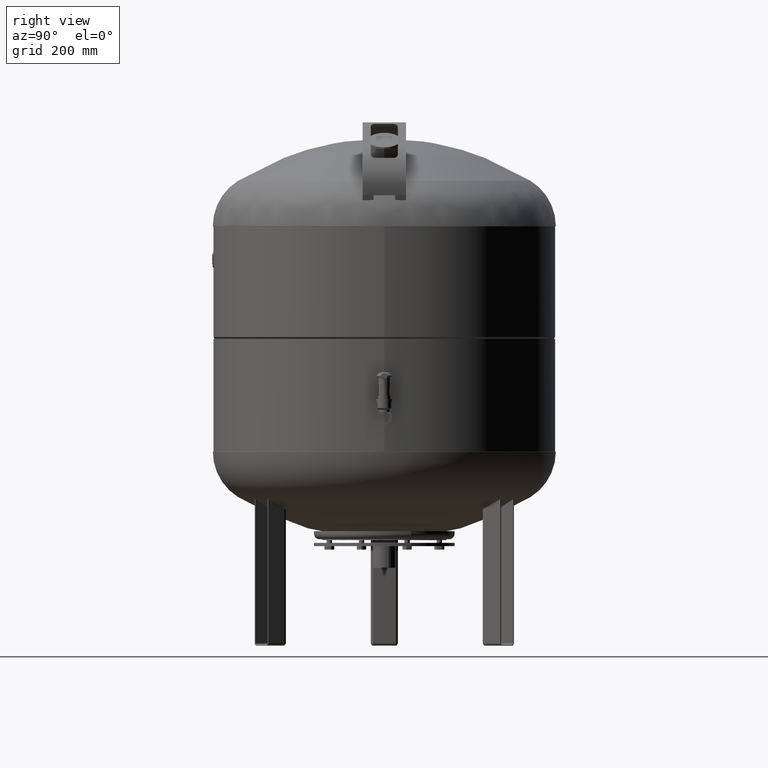
[diagram: clean part render]
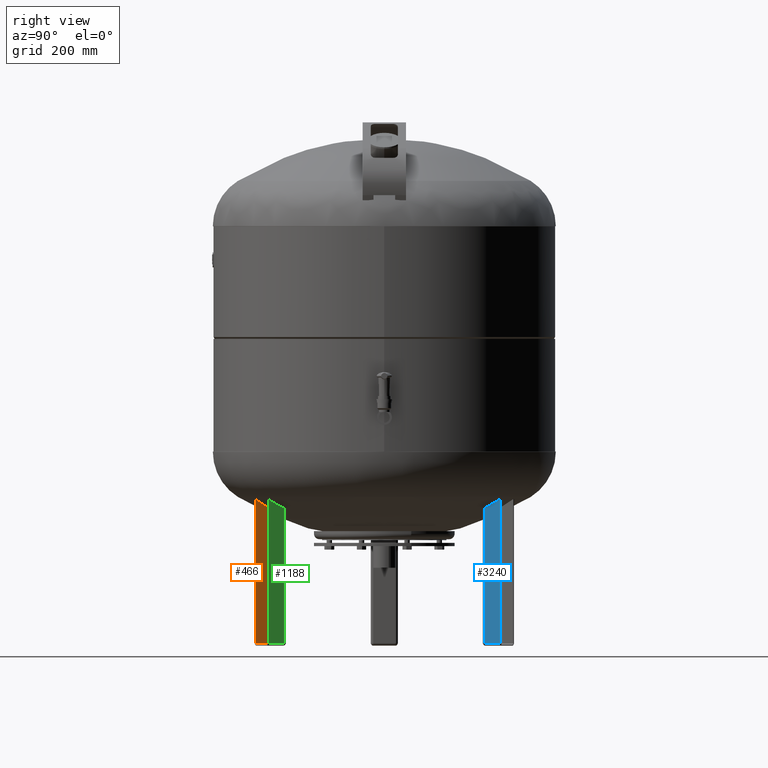
[diagram: same view with three faces highlighted in distinct colors, each labeled with its STEP entity id]
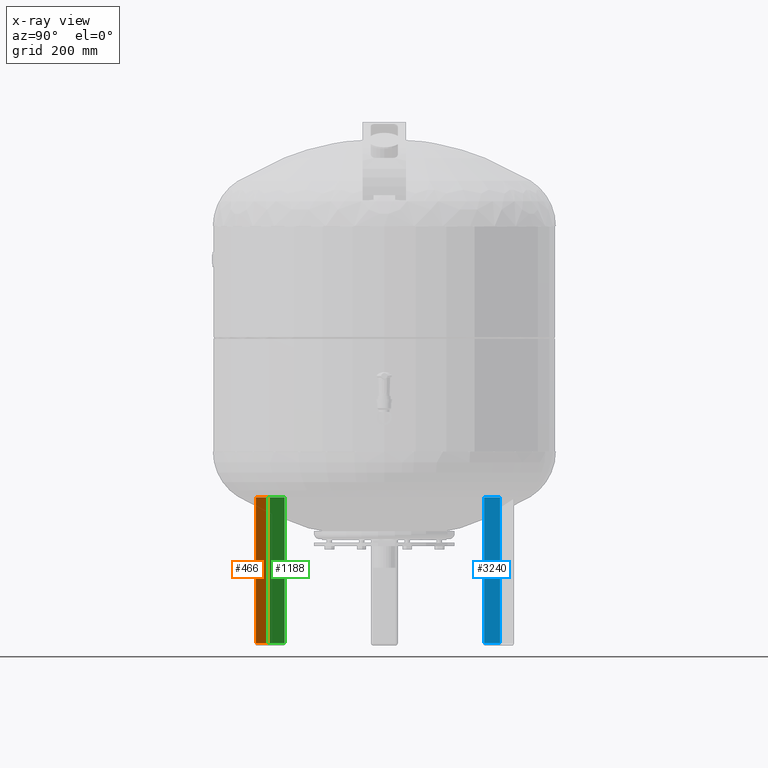
[diagram: x-ray of the same camera — body ghosted, the three highlighted faces saturated]
A machine part, right view with three faces highlighted in distinct colors.
The next image is the same camera in x-ray (body ghosted, the three faces saturated) — at least one of them is partly hidden behind the body in this view.
Their STEP definitions:

[orange] entity #466 — the highlighted planar face has unit normal (-0.866, -0.5, -0).
#182=CARTESIAN_POINT('',(111.264428414850070,-237.715643089630760,274.0));
#183=VERTEX_POINT('',#182);
#191=CARTESIAN_POINT('',(94.264428414850073,-208.270779360959840,274.0));
#192=VERTEX_POINT('',#191);
#193=CARTESIAN_POINT('',(94.264428414850073,-208.270779360959840,274.0));
#194=DIRECTION('',(0.500000000000000,-0.866025403784439,0.0));
#195=VECTOR('',#194,34.000000000000007);
#196=LINE('',#193,#195);
#197=EDGE_CURVE('',#192,#183,#196,.T.);
#382=CARTESIAN_POINT('',(111.264428414850070,-237.715643089630760,4.499999999999996));
#383=VERTEX_POINT('',#382);
#433=CARTESIAN_POINT('',(111.264428414850070,-237.715643089630760,4.499999999999996));
#434=DIRECTION('',(0.0,0.0,1.0));
#435=VECTOR('',#434,269.500000000000000);
#436=LINE('',#433,#435);
#437=EDGE_CURVE('',#383,#183,#436,.T.);
#443=CARTESIAN_POINT('',(111.764428414850090,-238.581668493415180,1.999999999999996));
#444=DIRECTION('',(-0.866025403784438,-0.500000000000000,-1.836970E-016));
#445=DIRECTION('',(0.500000000000000,-0.866025403784438,5.370543E-032));
#446=AXIS2_PLACEMENT_3D('',#443,#444,#445);
#447=PLANE('',#446);
#448=ORIENTED_EDGE('',*,*,#437,.F.);
#449=CARTESIAN_POINT('',(94.264428414850073,-208.270779360959840,4.499999999999996));
#450=VERTEX_POINT('',#449);
#451=CARTESIAN_POINT('',(94.264428414850073,-208.270779360959840,4.499999999999996));
#452=DIRECTION('',(0.500000000000000,-0.866025403784439,0.0));
#453=VECTOR('',#452,34.000000000000007);
#454=LINE('',#451,#453);
#455=EDGE_CURVE('',#450,#383,#454,.T.);
#456=ORIENTED_EDGE('',*,*,#455,.F.);
#457=CARTESIAN_POINT('',(94.264428414850073,-208.270779360959840,274.0));
#458=DIRECTION('',(0.0,0.0,-1.0));
#459=VECTOR('',#458,269.500000000000000);
#460=LINE('',#457,#459);
#461=EDGE_CURVE('',#192,#450,#460,.T.);
#462=ORIENTED_EDGE('',*,*,#461,.F.);
#463=ORIENTED_EDGE('',*,*,#197,.T.);
#464=EDGE_LOOP('',(#448,#456,#462,#463));
#465=FACE_OUTER_BOUND('',#464,.T.);
#466=ADVANCED_FACE('',(#465),#447,.F.);

[blue] entity #3240 — the highlighted planar face has unit normal (0.866, -0.5, -0).
#2412=CARTESIAN_POINT('',(135.400635094611000,184.520779360959840,274.0));
#2413=VERTEX_POINT('',#2412);
#2421=CARTESIAN_POINT('',(152.400635094611000,213.965643089630760,274.0));
#2422=VERTEX_POINT('',#2421);
#2423=CARTESIAN_POINT('',(152.400635094611000,213.965643089630760,274.0));
#2424=DIRECTION('',(-0.500000000000000,-0.866025403784439,0.0));
#2425=VECTOR('',#2424,34.000000000000007);
#2426=LINE('',#2423,#2425);
#2427=EDGE_CURVE('',#2422,#2413,#2426,.T.);
#2732=CARTESIAN_POINT('',(152.400635094611000,213.965643089630760,4.999999999999996));
#2733=VERTEX_POINT('',#2732);
#2734=CARTESIAN_POINT('',(152.400635094611000,213.965643089630760,4.999999999999996));
#2735=DIRECTION('',(0.0,0.0,1.0));
#2736=VECTOR('',#2735,269.0);
#2737=LINE('',#2734,#2736);
#2738=EDGE_CURVE('',#2733,#2422,#2737,.T.);
#3115=CARTESIAN_POINT('',(135.400635094611000,184.520779360959840,4.999999999999996));
#3116=VERTEX_POINT('',#3115);
#3117=CARTESIAN_POINT('',(152.400635094611000,213.965643089630760,4.999999999999996));
#3118=DIRECTION('',(-0.500000000000000,-0.866025403784439,0.0));
#3119=VECTOR('',#3118,34.000000000000007);
#3120=LINE('',#3117,#3119);
#3121=EDGE_CURVE('',#2733,#3116,#3120,.T.);
#3218=CARTESIAN_POINT('',(135.400635094611000,184.520779360959840,4.999999999999996));
#3219=DIRECTION('',(0.0,0.0,1.0));
#3220=VECTOR('',#3219,269.0);
#3221=LINE('',#3218,#3220);
#3222=EDGE_CURVE('',#3116,#2413,#3221,.T.);
#3229=CARTESIAN_POINT('',(152.900635094611000,214.831668493415180,-4.592425E-015));
#3230=DIRECTION('',(0.866025403784439,-0.500000000000000,-1.836970E-016));
#3231=DIRECTION('',(0.500000000000000,0.866025403784439,3.059170E-032));
#3232=AXIS2_PLACEMENT_3D('',#3229,#3230,#3231);
#3233=PLANE('',#3232);
#3234=ORIENTED_EDGE('',*,*,#2738,.T.);
#3235=ORIENTED_EDGE('',*,*,#2427,.T.);
#3236=ORIENTED_EDGE('',*,*,#3222,.F.);
#3237=ORIENTED_EDGE('',*,*,#3121,.F.);
#3238=EDGE_LOOP('',(#3234,#3235,#3236,#3237));
#3239=FACE_OUTER_BOUND('',#3238,.T.);
#3240=ADVANCED_FACE('',(#3239),#3233,.T.);

[green] entity #1188 — the highlighted planar face has unit normal (0.866, 0.5, 0).
#250=CARTESIAN_POINT('',(152.400635094610890,-213.965643089630730,274.0));
#251=VERTEX_POINT('',#250);
#259=CARTESIAN_POINT('',(135.400635094610890,-184.520779360959840,274.0));
#260=VERTEX_POINT('',#259);
#261=CARTESIAN_POINT('',(135.400635094610890,-184.520779360959840,274.0));
#262=DIRECTION('',(0.500000000000000,-0.866025403784438,0.0));
#263=VECTOR('',#262,33.999999999999986);
#264=LINE('',#261,#263);
#265=EDGE_CURVE('',#260,#251,#264,.T.);
#695=CARTESIAN_POINT('',(152.400635094610920,-213.965643089630730,5.000000000000004));
#696=VERTEX_POINT('',#695);
#723=CARTESIAN_POINT('',(152.400635094610920,-213.965643089630730,5.000000000000004));
#724=DIRECTION('',(0.0,0.0,1.0));
#725=VECTOR('',#724,269.0);
#726=LINE('',#723,#725);
#727=EDGE_CURVE('',#696,#251,#726,.T.);
#923=CARTESIAN_POINT('',(135.400635094610890,-184.520779360959840,5.000000000000004));
#924=VERTEX_POINT('',#923);
#932=CARTESIAN_POINT('',(135.400635094610890,-184.520779360959840,5.000000000000004));
#933=DIRECTION('',(0.500000000000001,-0.866025403784438,0.0));
#934=VECTOR('',#933,34.0);
#935=LINE('',#932,#934);
#936=EDGE_CURVE('',#924,#696,#935,.T.);
#1058=CARTESIAN_POINT('',(135.400635094610890,-184.520779360959840,5.000000000000004));
#1059=DIRECTION('',(0.0,0.0,1.0));
#1060=VECTOR('',#1059,269.0);
#1061=LINE('',#1058,#1060);
#1062=EDGE_CURVE('',#924,#260,#1061,.T.);
#1177=CARTESIAN_POINT('',(132.900635094610890,-180.190652342037620,4.592425E-015));
#1178=DIRECTION('',(0.866025403784439,0.500000000000000,1.836970E-016));
#1179=DIRECTION('',(-0.500000000000000,0.866025403784438,-4.078893E-032));
#1180=AXIS2_PLACEMENT_3D('',#1177,#1178,#1179);
#1181=PLANE('',#1180);
#1182=ORIENTED_EDGE('',*,*,#727,.F.);
#1183=ORIENTED_EDGE('',*,*,#936,.F.);
#1184=ORIENTED_EDGE('',*,*,#1062,.T.);
#1185=ORIENTED_EDGE('',*,*,#265,.T.);
#1186=EDGE_LOOP('',(#1182,#1183,#1184,#1185));
#1187=FACE_OUTER_BOUND('',#1186,.T.);
#1188=ADVANCED_FACE('',(#1187),#1181,.T.);